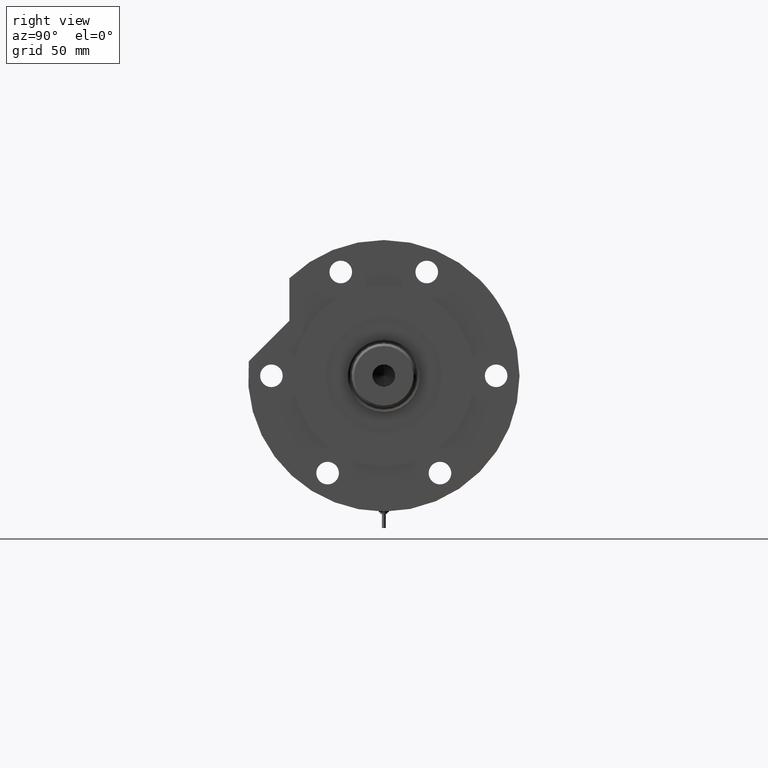
[diagram: clean part render]
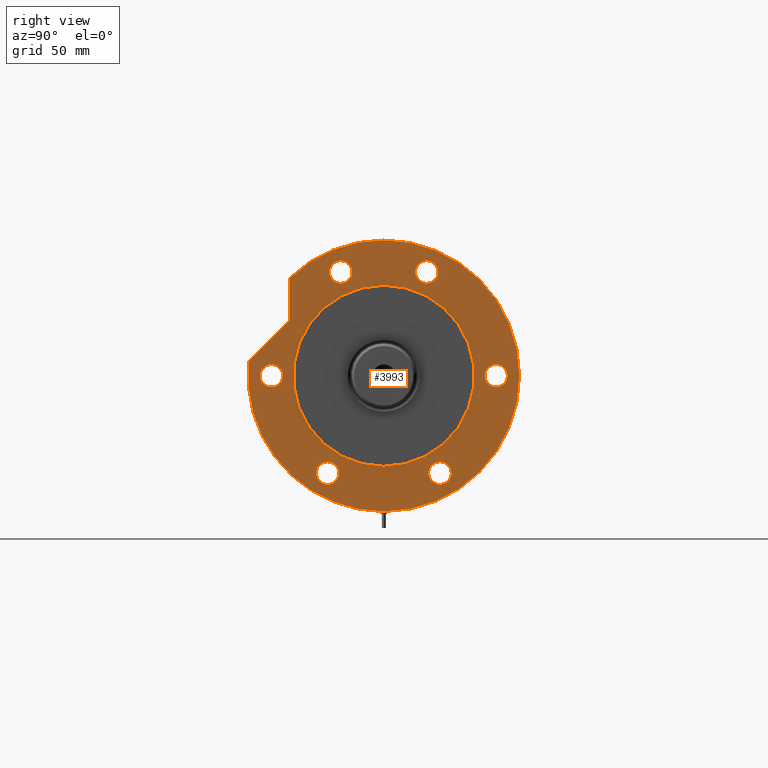
[diagram: same view with one face highlighted and labeled with its STEP entity id]
A machine part, right view. The second image highlights one B-rep face of the part: STEP entity #3993.
In plain terms, the highlighted planar face has unit normal (1, 0, -0).
Its self-contained STEP definition (entity closure, byte-faithful):
#18 = CARTESIAN_POINT ( 'NONE',  ( -62.35382907247965534, 35.99999999999985079, 31.00000000000000000 ) ) ;
#51 = ORIENTED_EDGE ( 'NONE', *, *, #5562, .F. ) ;
#52 = DIRECTION ( 'NONE',  ( 0.000000000000000000, 0.000000000000000000, 1.000000000000000000 ) ) ;
#76 = VERTEX_POINT ( 'NONE', #525 ) ;
#98 = CARTESIAN_POINT ( 'NONE',  ( 66.51932634081252615, 27.55320713028675073, 31.00000000000000000 ) ) ;
#127 = DIRECTION ( 'NONE',  ( 1.000000000000000000, 0.000000000000000000, 0.000000000000000000 ) ) ;
#211 = DIRECTION ( 'NONE',  ( 1.000000000000000000, 0.000000000000000000, 0.000000000000000000 ) ) ;
#228 = EDGE_CURVE ( 'NONE', #5949, #6420, #1848, .T. ) ;
#249 = DIRECTION ( 'NONE',  ( 1.000000000000000000, 0.000000000000000000, 0.000000000000000000 ) ) ;
#285 = DIRECTION ( 'NONE',  ( 0.000000000000000000, 0.000000000000000000, 1.000000000000000000 ) ) ;
#307 = CIRCLE ( 'NONE', #6771, 58.00000000000000000 ) ;
#360 = CARTESIAN_POINT ( 'NONE',  ( 0.000000000000000000, -72.00000000000000000, 31.00000000000000000 ) ) ;
#417 = ORIENTED_EDGE ( 'NONE', *, *, #3441, .T. ) ;
#421 = VERTEX_POINT ( 'NONE', #876 ) ;
#494 = DIRECTION ( 'NONE',  ( 0.000000000000000000, 0.000000000000000000, 1.000000000000000000 ) ) ;
#525 = CARTESIAN_POINT ( 'NONE',  ( 58.00000000000000000, 7.102951435054648059E-15, 31.00000000000000000 ) ) ;
#566 = VECTOR ( 'NONE', #4085, 1000.000000000000000 ) ;
#652 = EDGE_LOOP ( 'NONE', ( #6820, #3102 ) ) ;
#663 = DIRECTION ( 'NONE',  ( 0.000000000000000000, 0.000000000000000000, 1.000000000000000000 ) ) ;
#668 = DIRECTION ( 'NONE',  ( 1.000000000000000000, 0.000000000000000000, 0.000000000000000000 ) ) ;
#685 = CIRCLE ( 'NONE', #2627, 7.249999999999992895 ) ;
#687 = EDGE_CURVE ( 'NONE', #5142, #1796, #3431, .T. ) ;
#767 = CARTESIAN_POINT ( 'NONE',  ( 0.000000000000000000, 72.00000000000000000, 31.00000000000000000 ) ) ;
#821 = CIRCLE ( 'NONE', #1064, 7.249999999999992895 ) ;
#876 = CARTESIAN_POINT ( 'NONE',  ( -7.250000000000001776, 72.00000000000000000, 31.00000000000000000 ) ) ;
#884 = AXIS2_PLACEMENT_3D ( 'NONE', #3954, #494, #6408 ) ;
#895 = CIRCLE ( 'NONE', #2599, 7.250000000000001776 ) ;
#1020 = CARTESIAN_POINT ( 'NONE',  ( -55.10382907247964823, 35.99999999999985079, 31.00000000000000000 ) ) ;
#1026 = CARTESIAN_POINT ( 'NONE',  ( 66.51932634081252615, -27.55320713028675073, 31.00000000000000000 ) ) ;
#1034 = EDGE_CURVE ( 'NONE', #1399, #4981, #1222, .T. ) ;
#1061 = ORIENTED_EDGE ( 'NONE', *, *, #5409, .T. ) ;
#1064 = AXIS2_PLACEMENT_3D ( 'NONE', #98, #663, #3437 ) ;
#1088 = FACE_BOUND ( 'NONE', #5976, .T. ) ;
#1105 = ORIENTED_EDGE ( 'NONE', *, *, #1034, .F. ) ;
#1117 = FACE_BOUND ( 'NONE', #3727, .T. ) ;
#1139 = AXIS2_PLACEMENT_3D ( 'NONE', #7518, #5835, #4018 ) ;
#1155 = FACE_BOUND ( 'NONE', #3298, .T. ) ;
#1222 = LINE ( 'NONE', #6438, #3311 ) ;
#1232 = CARTESIAN_POINT ( 'NONE',  ( -62.35382907247942086, -36.00000000000027711, 31.00000000000000000 ) ) ;
#1262 = CARTESIAN_POINT ( 'NONE',  ( 0.000000000000000000, 0.000000000000000000, 31.00000000000000000 ) ) ;
#1279 = CARTESIAN_POINT ( 'NONE',  ( 66.51932634081252615, -27.55320713028675073, 31.00000000000000000 ) ) ;
#1280 = DIRECTION ( 'NONE',  ( 0.000000000000000000, 0.000000000000000000, 1.000000000000000000 ) ) ;
#1289 = AXIS2_PLACEMENT_3D ( 'NONE', #6626, #1384, #5950 ) ;
#1300 = VERTEX_POINT ( 'NONE', #3112 ) ;
#1384 = DIRECTION ( 'NONE',  ( 0.000000000000000000, 0.000000000000000000, 1.000000000000000000 ) ) ;
#1388 = AXIS2_PLACEMENT_3D ( 'NONE', #18, #3975, #3402 ) ;
#1399 = VERTEX_POINT ( 'NONE', #6225 ) ;
#1405 = CIRCLE ( 'NONE', #1289, 7.250000000000001776 ) ;
#1455 = DIRECTION ( 'NONE',  ( 0.000000000000000000, 0.000000000000000000, 1.000000000000000000 ) ) ;
#1557 = DIRECTION ( 'NONE',  ( 0.000000000000000000, 0.000000000000000000, 1.000000000000000000 ) ) ;
#1642 = EDGE_CURVE ( 'NONE', #1300, #3900, #2462, .T. ) ;
#1643 = DIRECTION ( 'NONE',  ( 1.000000000000000000, 0.000000000000000000, 0.000000000000000000 ) ) ;
#1690 = FACE_BOUND ( 'NONE', #6602, .T. ) ;
#1796 = VERTEX_POINT ( 'NONE', #2997 ) ;
#1844 = VERTEX_POINT ( 'NONE', #3500 ) ;
#1848 = CIRCLE ( 'NONE', #7360, 7.250000000000001776 ) ;
#1875 = CARTESIAN_POINT ( 'NONE',  ( -62.35382907247965534, 35.99999999999985079, 31.00000000000000000 ) ) ;
#1924 = DIRECTION ( 'NONE',  ( 1.000000000000000000, 0.000000000000000000, 0.000000000000000000 ) ) ;
#1974 = CIRCLE ( 'NONE', #2456, 87.00000000000000000 ) ;
#2082 = DIRECTION ( 'NONE',  ( 1.000000000000000000, 0.000000000000000000, 0.000000000000000000 ) ) ;
#2086 = ORIENTED_EDGE ( 'NONE', *, *, #7097, .F. ) ;
#2111 = CIRCLE ( 'NONE', #4651, 7.250000000000006217 ) ;
#2136 = AXIS2_PLACEMENT_3D ( 'NONE', #5756, #6908, #6977 ) ;
#2201 = VERTEX_POINT ( 'NONE', #1020 ) ;
#2255 = CARTESIAN_POINT ( 'NONE',  ( 0.000000000000000000, 60.47687547247904405, 31.00000000000000000 ) ) ;
#2422 = EDGE_CURVE ( 'NONE', #1844, #5134, #1974, .T. ) ;
#2456 = AXIS2_PLACEMENT_3D ( 'NONE', #3025, #1280, #1924 ) ;
#2462 = CIRCLE ( 'NONE', #3195, 7.249999999999992895 ) ;
#2539 = DIRECTION ( 'NONE',  ( 1.000000000000000000, 0.000000000000000000, 0.000000000000000000 ) ) ;
#2542 = ORIENTED_EDGE ( 'NONE', *, *, #687, .F. ) ;
#2599 = AXIS2_PLACEMENT_3D ( 'NONE', #767, #4151, #4790 ) ;
#2627 = AXIS2_PLACEMENT_3D ( 'NONE', #1232, #5908, #668 ) ;
#2671 = DIRECTION ( 'NONE',  ( 1.000000000000000000, 0.000000000000000000, 0.000000000000000000 ) ) ;
#2836 = FACE_OUTER_BOUND ( 'NONE', #4323, .T. ) ;
#2860 = CARTESIAN_POINT ( 'NONE',  ( -55.10382907247942796, -36.00000000000027711, 31.00000000000000000 ) ) ;
#2997 = CARTESIAN_POINT ( 'NONE',  ( 59.26932634081251905, 27.55320713028675073, 31.00000000000000000 ) ) ;
#3025 = CARTESIAN_POINT ( 'NONE',  ( 0.000000000000000000, 0.000000000000000000, 31.00000000000000000 ) ) ;
#3102 = ORIENTED_EDGE ( 'NONE', *, *, #3129, .F. ) ;
#3112 = CARTESIAN_POINT ( 'NONE',  ( 59.26932634081251905, -27.55320713028675073, 31.00000000000000000 ) ) ;
#3129 = EDGE_CURVE ( 'NONE', #6420, #5949, #7000, .T. ) ;
#3195 = AXIS2_PLACEMENT_3D ( 'NONE', #1026, #5097, #2671 ) ;
#3298 = EDGE_LOOP ( 'NONE', ( #2086, #2542 ) ) ;
#3308 = EDGE_CURVE ( 'NONE', #5577, #76, #7133, .T. ) ;
#3311 = VECTOR ( 'NONE', #7548, 999.9999999999998863 ) ;
#3316 = EDGE_CURVE ( 'NONE', #2201, #6489, #2111, .T. ) ;
#3348 = EDGE_CURVE ( 'NONE', #421, #3538, #895, .T. ) ;
#3402 = DIRECTION ( 'NONE',  ( 1.000000000000000000, 0.000000000000000000, 0.000000000000000000 ) ) ;
#3410 = FACE_BOUND ( 'NONE', #652, .T. ) ;
#3420 = VERTEX_POINT ( 'NONE', #6306 ) ;
#3431 = CIRCLE ( 'NONE', #884, 7.249999999999992895 ) ;
#3437 = DIRECTION ( 'NONE',  ( 1.000000000000000000, 0.000000000000000000, 0.000000000000000000 ) ) ;
#3441 = EDGE_CURVE ( 'NONE', #5134, #5875, #3687, .T. ) ;
#3482 = FACE_BOUND ( 'NONE', #5089, .T. ) ;
#3500 = CARTESIAN_POINT ( 'NONE',  ( -87.00000000000000000, 0.000000000000000000, 31.00000000000000000 ) ) ;
#3538 = VERTEX_POINT ( 'NONE', #6341 ) ;
#3547 = DIRECTION ( 'NONE',  ( 0.000000000000000000, 0.000000000000000000, 1.000000000000000000 ) ) ;
#3570 = CARTESIAN_POINT ( 'NONE',  ( 7.250000000000001776, -72.00000000000000000, 31.00000000000000000 ) ) ;
#3687 = CIRCLE ( 'NONE', #7003, 87.00000000000000000 ) ;
#3697 = ORIENTED_EDGE ( 'NONE', *, *, #3348, .F. ) ;
#3708 = CARTESIAN_POINT ( 'NONE',  ( -58.00000000000000000, 0.000000000000000000, 31.00000000000000000 ) ) ;
#3712 = CIRCLE ( 'NONE', #3964, 7.249999999999992895 ) ;
#3727 = EDGE_LOOP ( 'NONE', ( #7005, #4005 ) ) ;
#3749 = CARTESIAN_POINT ( 'NONE',  ( 0.000000000000000000, -72.00000000000000000, 31.00000000000000000 ) ) ;
#3886 = ORIENTED_EDGE ( 'NONE', *, *, #5585, .F. ) ;
#3900 = VERTEX_POINT ( 'NONE', #7478 ) ;
#3954 = CARTESIAN_POINT ( 'NONE',  ( 66.51932634081252615, 27.55320713028675073, 31.00000000000000000 ) ) ;
#3964 = AXIS2_PLACEMENT_3D ( 'NONE', #1279, #6562, #2539 ) ;
#3975 = DIRECTION ( 'NONE',  ( 0.000000000000000000, 0.000000000000000000, 1.000000000000000000 ) ) ;
#3993 = ADVANCED_FACE ( 'NONE', ( #1088, #1155, #1117, #3410, #1690, #3482, #2836, #5229 ), #5155, .T. ) ;
#4005 = ORIENTED_EDGE ( 'NONE', *, *, #5073, .F. ) ;
#4018 = DIRECTION ( 'NONE',  ( 1.000000000000000000, 0.000000000000000000, -0.000000000000000000 ) ) ;
#4064 = EDGE_CURVE ( 'NONE', #76, #5577, #307, .T. ) ;
#4085 = DIRECTION ( 'NONE',  ( 1.000000000000000000, 0.000000000000000000, -0.000000000000000000 ) ) ;
#4151 = DIRECTION ( 'NONE',  ( 0.000000000000000000, 0.000000000000000000, 1.000000000000000000 ) ) ;
#4194 = ORIENTED_EDGE ( 'NONE', *, *, #6738, .F. ) ;
#4323 = EDGE_LOOP ( 'NONE', ( #4420, #1105, #1061, #6560, #417 ) ) ;
#4390 = EDGE_CURVE ( 'NONE', #6489, #2201, #6647, .T. ) ;
#4420 = ORIENTED_EDGE ( 'NONE', *, *, #5899, .F. ) ;
#4651 = AXIS2_PLACEMENT_3D ( 'NONE', #1875, #52, #7049 ) ;
#4790 = DIRECTION ( 'NONE',  ( 1.000000000000000000, 0.000000000000000000, 0.000000000000000000 ) ) ;
#4865 = CARTESIAN_POINT ( 'NONE',  ( 0.000000000000000000, 0.000000000000000000, 31.00000000000000000 ) ) ;
#4981 = VERTEX_POINT ( 'NONE', #5522 ) ;
#5073 = EDGE_CURVE ( 'NONE', #3900, #1300, #3712, .T. ) ;
#5089 = EDGE_LOOP ( 'NONE', ( #5698, #6559 ) ) ;
#5097 = DIRECTION ( 'NONE',  ( 0.000000000000000000, 0.000000000000000000, 1.000000000000000000 ) ) ;
#5126 = ORIENTED_EDGE ( 'NONE', *, *, #4064, .F. ) ;
#5134 = VERTEX_POINT ( 'NONE', #5765 ) ;
#5142 = VERTEX_POINT ( 'NONE', #6419 ) ;
#5155 = PLANE ( 'NONE',  #1139 ) ;
#5229 = FACE_BOUND ( 'NONE', #5322, .T. ) ;
#5308 = DIRECTION ( 'NONE',  ( 0.000000000000000000, 0.000000000000000000, 1.000000000000000000 ) ) ;
#5322 = EDGE_LOOP ( 'NONE', ( #5549, #5126 ) ) ;
#5387 = AXIS2_PLACEMENT_3D ( 'NONE', #1262, #3547, #127 ) ;
#5409 = EDGE_CURVE ( 'NONE', #1399, #1844, #5412, .T. ) ;
#5412 = CIRCLE ( 'NONE', #2136, 87.00000000000000000 ) ;
#5522 = CARTESIAN_POINT ( 'NONE',  ( 35.23236590573035443, 60.47687547247904405, 31.00000000000000000 ) ) ;
#5549 = ORIENTED_EDGE ( 'NONE', *, *, #3308, .F. ) ;
#5562 = EDGE_CURVE ( 'NONE', #7530, #3420, #685, .T. ) ;
#5577 = VERTEX_POINT ( 'NONE', #3708 ) ;
#5585 = EDGE_CURVE ( 'NONE', #3538, #421, #1405, .T. ) ;
#5697 = CIRCLE ( 'NONE', #7178, 7.249999999999992895 ) ;
#5698 = ORIENTED_EDGE ( 'NONE', *, *, #4390, .F. ) ;
#5756 = CARTESIAN_POINT ( 'NONE',  ( 0.000000000000000000, 0.000000000000000000, 31.00000000000000000 ) ) ;
#5765 = CARTESIAN_POINT ( 'NONE',  ( 87.00000000000000000, 1.065442715258197209E-14, 31.00000000000000000 ) ) ;
#5785 = CARTESIAN_POINT ( 'NONE',  ( 62.54236590573034249, 60.47687547247904405, 31.00000000000000000 ) ) ;
#5835 = DIRECTION ( 'NONE',  ( 0.000000000000000000, 0.000000000000000000, 1.000000000000000000 ) ) ;
#5875 = VERTEX_POINT ( 'NONE', #5785 ) ;
#5899 = EDGE_CURVE ( 'NONE', #4981, #5875, #6358, .T. ) ;
#5908 = DIRECTION ( 'NONE',  ( 0.000000000000000000, 0.000000000000000000, 1.000000000000000000 ) ) ;
#5949 = VERTEX_POINT ( 'NONE', #6897 ) ;
#5950 = DIRECTION ( 'NONE',  ( 1.000000000000000000, 0.000000000000000000, 0.000000000000000000 ) ) ;
#5976 = EDGE_LOOP ( 'NONE', ( #3697, #3886 ) ) ;
#5981 = CARTESIAN_POINT ( 'NONE',  ( 0.000000000000000000, 0.000000000000000000, 31.00000000000000000 ) ) ;
#6184 = CARTESIAN_POINT ( 'NONE',  ( -62.35382907247942086, -36.00000000000027711, 31.00000000000000000 ) ) ;
#6225 = CARTESIAN_POINT ( 'NONE',  ( 9.196694222441541555, 86.51254715576759224, 31.00000000000000000 ) ) ;
#6306 = CARTESIAN_POINT ( 'NONE',  ( -69.60382907247941375, -36.00000000000027711, 31.00000000000000000 ) ) ;
#6341 = CARTESIAN_POINT ( 'NONE',  ( 7.250000000000001776, 72.00000000000000000, 31.00000000000000000 ) ) ;
#6358 = LINE ( 'NONE', #2255, #566 ) ;
#6392 = AXIS2_PLACEMENT_3D ( 'NONE', #360, #6434, #1643 ) ;
#6408 = DIRECTION ( 'NONE',  ( 1.000000000000000000, 0.000000000000000000, 0.000000000000000000 ) ) ;
#6419 = CARTESIAN_POINT ( 'NONE',  ( 73.76932634081251194, 27.55320713028675073, 31.00000000000000000 ) ) ;
#6420 = VERTEX_POINT ( 'NONE', #3570 ) ;
#6434 = DIRECTION ( 'NONE',  ( 0.000000000000000000, 0.000000000000000000, 1.000000000000000000 ) ) ;
#6438 = CARTESIAN_POINT ( 'NONE',  ( 47.85462068910451450, 47.85462068910500477, 31.00000000000000000 ) ) ;
#6489 = VERTEX_POINT ( 'NONE', #6685 ) ;
#6559 = ORIENTED_EDGE ( 'NONE', *, *, #3316, .F. ) ;
#6560 = ORIENTED_EDGE ( 'NONE', *, *, #2422, .T. ) ;
#6562 = DIRECTION ( 'NONE',  ( 0.000000000000000000, 0.000000000000000000, 1.000000000000000000 ) ) ;
#6602 = EDGE_LOOP ( 'NONE', ( #4194, #51 ) ) ;
#6626 = CARTESIAN_POINT ( 'NONE',  ( 0.000000000000000000, 72.00000000000000000, 31.00000000000000000 ) ) ;
#6647 = CIRCLE ( 'NONE', #1388, 7.250000000000006217 ) ;
#6685 = CARTESIAN_POINT ( 'NONE',  ( -69.60382907247965534, 35.99999999999985079, 31.00000000000000000 ) ) ;
#6738 = EDGE_CURVE ( 'NONE', #3420, #7530, #5697, .T. ) ;
#6771 = AXIS2_PLACEMENT_3D ( 'NONE', #5981, #5308, #211 ) ;
#6820 = ORIENTED_EDGE ( 'NONE', *, *, #228, .F. ) ;
#6874 = DIRECTION ( 'NONE',  ( 1.000000000000000000, 0.000000000000000000, 0.000000000000000000 ) ) ;
#6897 = CARTESIAN_POINT ( 'NONE',  ( -7.250000000000001776, -72.00000000000000000, 31.00000000000000000 ) ) ;
#6908 = DIRECTION ( 'NONE',  ( 0.000000000000000000, 0.000000000000000000, 1.000000000000000000 ) ) ;
#6977 = DIRECTION ( 'NONE',  ( 1.000000000000000000, 0.000000000000000000, 0.000000000000000000 ) ) ;
#7000 = CIRCLE ( 'NONE', #6392, 7.250000000000001776 ) ;
#7003 = AXIS2_PLACEMENT_3D ( 'NONE', #4865, #1455, #6874 ) ;
#7005 = ORIENTED_EDGE ( 'NONE', *, *, #1642, .F. ) ;
#7049 = DIRECTION ( 'NONE',  ( 1.000000000000000000, 0.000000000000000000, 0.000000000000000000 ) ) ;
#7097 = EDGE_CURVE ( 'NONE', #1796, #5142, #821, .T. ) ;
#7133 = CIRCLE ( 'NONE', #5387, 58.00000000000000000 ) ;
#7178 = AXIS2_PLACEMENT_3D ( 'NONE', #6184, #1557, #2082 ) ;
#7360 = AXIS2_PLACEMENT_3D ( 'NONE', #3749, #285, #249 ) ;
#7478 = CARTESIAN_POINT ( 'NONE',  ( 73.76932634081251194, -27.55320713028675073, 31.00000000000000000 ) ) ;
#7518 = CARTESIAN_POINT ( 'NONE',  ( 0.000000000000000000, 0.000000000000000000, 31.00000000000000000 ) ) ;
#7530 = VERTEX_POINT ( 'NONE', #2860 ) ;
#7548 = DIRECTION ( 'NONE',  ( 0.7071067811865511255, -0.7071067811865440200, 0.000000000000000000 ) ) ;